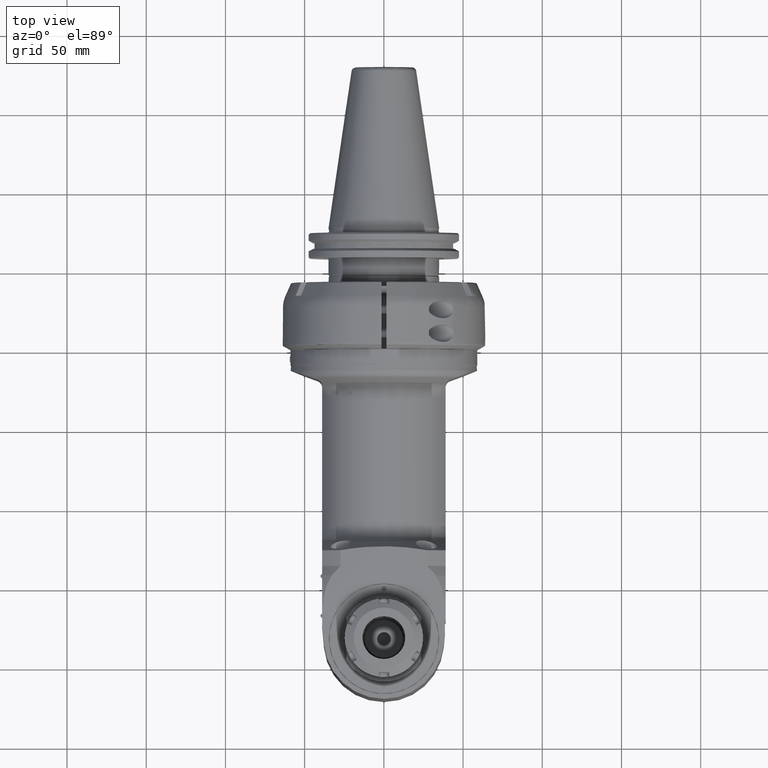
[diagram: clean part render]
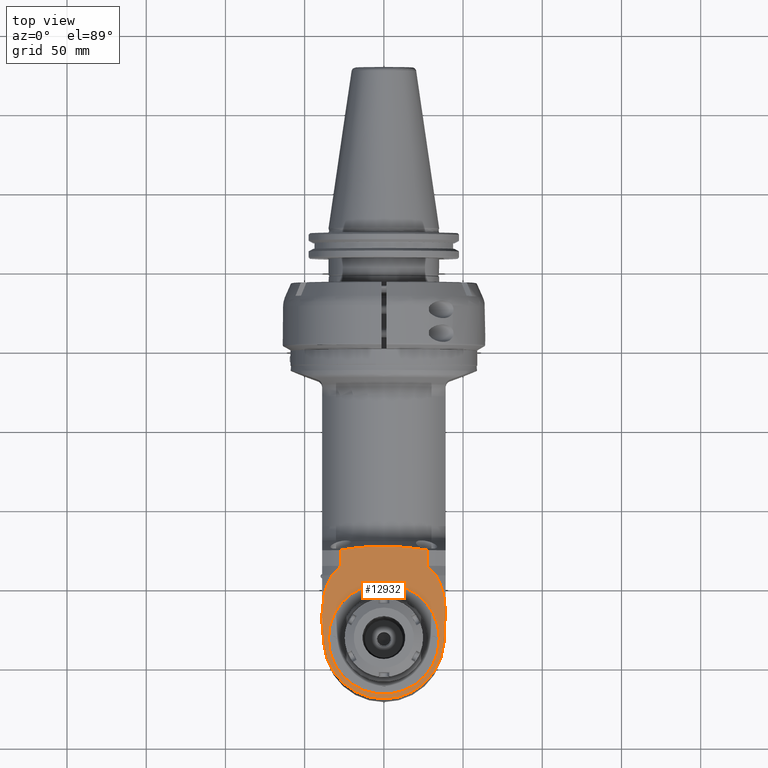
[diagram: same view with one face highlighted and labeled with its STEP entity id]
A machine part, top view. The second image highlights one B-rep face of the part: STEP entity #12932.
In plain terms, the highlighted planar face has unit normal (-0, 0, -1).
Its self-contained STEP definition (entity closure, byte-faithful):
#726=FACE_BOUND('',#2405,.T.);
#1112=CIRCLE('',#14128,38.);
#1113=CIRCLE('',#14129,35.);
#1676=FACE_OUTER_BOUND('',#2404,.T.);
#2404=EDGE_LOOP('',(#10221,#10222,#10223,#10224,#10225,#10226,#10227,#10228,
#10229,#10230,#10231,#10232,#10233,#10234,#10235,#10236,#10237,#10238));
#2405=EDGE_LOOP('',(#10239));
#2847=(
BOUNDED_CURVE()
B_SPLINE_CURVE(2,(#35173,#35174,#35175),.UNSPECIFIED.,.F.,.F.)
B_SPLINE_CURVE_WITH_KNOTS((3,3),(3.46574667649423,4.69997156363712),
 .UNSPECIFIED.)
CURVE()
GEOMETRIC_REPRESENTATION_ITEM()
RATIONAL_B_SPLINE_CURVE((1.00131005125035,1.00141766141965,1.00143577259223))
REPRESENTATION_ITEM('')
);
#2848=(
BOUNDED_CURVE()
B_SPLINE_CURVE(2,(#35177,#35178,#35179),.UNSPECIFIED.,.F.,.F.)
B_SPLINE_CURVE_WITH_KNOTS((3,3),(-4.14584983345942,-3.45064970794969),
 .UNSPECIFIED.)
CURVE()
GEOMETRIC_REPRESENTATION_ITEM()
RATIONAL_B_SPLINE_CURVE((1.00981817843623,1.0095526696491,1.0091001322618))
REPRESENTATION_ITEM('')
);
#2849=(
BOUNDED_CURVE()
B_SPLINE_CURVE(2,(#35181,#35182,#35183),.UNSPECIFIED.,.F.,.F.)
B_SPLINE_CURVE_WITH_KNOTS((3,3),(-4.06473212786279,-3.26635224676758),
 .UNSPECIFIED.)
CURVE()
GEOMETRIC_REPRESENTATION_ITEM()
RATIONAL_B_SPLINE_CURVE((1.02083211429876,1.02002626044997,1.01873328218455))
REPRESENTATION_ITEM('')
);
#2850=(
BOUNDED_CURVE()
B_SPLINE_CURVE(2,(#35185,#35186,#35187),.UNSPECIFIED.,.F.,.F.)
B_SPLINE_CURVE_WITH_KNOTS((3,3),(-5.08883926254432,-4.03890607668467),
 .UNSPECIFIED.)
CURVE()
GEOMETRIC_REPRESENTATION_ITEM()
RATIONAL_B_SPLINE_CURVE((1.06243232138824,1.06042572721876,1.05658950207019))
REPRESENTATION_ITEM('')
);
#2851=(
BOUNDED_CURVE()
B_SPLINE_CURVE(2,(#35191,#35192,#35193),.UNSPECIFIED.,.F.,.F.)
B_SPLINE_CURVE_WITH_KNOTS((3,3),(-39.2901274757521,-22.6576735332739),
 .UNSPECIFIED.)
CURVE()
GEOMETRIC_REPRESENTATION_ITEM()
RATIONAL_B_SPLINE_CURVE((2.89442768351033,3.18877626149355,2.89442768350985))
REPRESENTATION_ITEM('')
);
#2852=(
BOUNDED_CURVE()
B_SPLINE_CURVE(2,(#35197,#35198,#35199),.UNSPECIFIED.,.F.,.F.)
B_SPLINE_CURVE_WITH_KNOTS((3,3),(7.39180618123146,8.44173936707015),
 .UNSPECIFIED.)
CURVE()
GEOMETRIC_REPRESENTATION_ITEM()
RATIONAL_B_SPLINE_CURVE((1.06243232138811,1.06042572721862,1.05658950207011))
REPRESENTATION_ITEM('')
);
#2853=(
BOUNDED_CURVE()
B_SPLINE_CURVE(2,(#35201,#35202,#35203),.UNSPECIFIED.,.F.,.F.)
B_SPLINE_CURVE_WITH_KNOTS((3,3),(6.70626472364303,7.50464455392589),
 .UNSPECIFIED.)
CURVE()
GEOMETRIC_REPRESENTATION_ITEM()
RATIONAL_B_SPLINE_CURVE((1.02083211419612,1.0200262603676,1.01873328218445))
REPRESENTATION_ITEM('')
);
#2854=(
BOUNDED_CURVE()
B_SPLINE_CURVE(2,(#35205,#35206,#35207),.UNSPECIFIED.,.F.,.F.)
B_SPLINE_CURVE_WITH_KNOTS((3,3),(6.11968423305367,6.81488440493575),
 .UNSPECIFIED.)
CURVE()
GEOMETRIC_REPRESENTATION_ITEM()
RATIONAL_B_SPLINE_CURVE((1.00981817843447,1.00955266962901,1.00910013219843))
REPRESENTATION_ITEM('')
);
#2855=(
BOUNDED_CURVE()
B_SPLINE_CURVE(2,(#35209,#35210,#35211),.UNSPECIFIED.,.F.,.F.)
B_SPLINE_CURVE_WITH_KNOTS((3,3),(5.19949135147145,6.43371624076894),
 .UNSPECIFIED.)
CURVE()
GEOMETRIC_REPRESENTATION_ITEM()
RATIONAL_B_SPLINE_CURVE((1.00143577259223,1.00141766141962,1.00131005124997))
REPRESENTATION_ITEM('')
);
#3552=LINE('',#35145,#4499);
#3556=LINE('',#35159,#4503);
#3559=LINE('',#35166,#4506);
#3560=LINE('',#35170,#4507);
#3561=LINE('',#35171,#4508);
#3562=LINE('',#35189,#4509);
#3563=LINE('',#35195,#4510);
#3564=LINE('',#35212,#4511);
#4499=VECTOR('',#16662,10.);
#4503=VECTOR('',#16674,10.);
#4506=VECTOR('',#16679,13.1328290761894);
#4507=VECTOR('',#16682,7.39597245335467);
#4508=VECTOR('',#16683,6.954089679144);
#4509=VECTOR('',#16684,9.909409918381);
#4510=VECTOR('',#16685,9.909409918361);
#4511=VECTOR('',#16686,6.26955266875);
#5647=VERTEX_POINT('',#35024);
#5667=VERTEX_POINT('',#35141);
#5673=VERTEX_POINT('',#35158);
#5675=VERTEX_POINT('',#35164);
#5676=VERTEX_POINT('',#35165);
#5677=VERTEX_POINT('',#35167);
#5678=VERTEX_POINT('',#35169);
#5679=VERTEX_POINT('',#35172);
#5680=VERTEX_POINT('',#35176);
#5681=VERTEX_POINT('',#35180);
#5682=VERTEX_POINT('',#35184);
#5683=VERTEX_POINT('',#35188);
#5684=VERTEX_POINT('',#35190);
#5685=VERTEX_POINT('',#35194);
#5686=VERTEX_POINT('',#35196);
#5687=VERTEX_POINT('',#35200);
#5688=VERTEX_POINT('',#35204);
#5689=VERTEX_POINT('',#35208);
#5690=VERTEX_POINT('',#35213);
#7335=EDGE_CURVE('',#5647,#5667,#3552,.T.);
#7342=EDGE_CURVE('',#5673,#5647,#3556,.T.);
#7345=EDGE_CURVE('',#5675,#5676,#3559,.T.);
#7346=EDGE_CURVE('',#5676,#5677,#1112,.T.);
#7347=EDGE_CURVE('',#5677,#5678,#3560,.T.);
#7348=EDGE_CURVE('',#5673,#5678,#3561,.T.);
#7349=EDGE_CURVE('',#5679,#5667,#2847,.T.);
#7350=EDGE_CURVE('',#5679,#5680,#2848,.T.);
#7351=EDGE_CURVE('',#5680,#5681,#2849,.T.);
#7352=EDGE_CURVE('',#5681,#5682,#2850,.T.);
#7353=EDGE_CURVE('',#5683,#5682,#3562,.T.);
#7354=EDGE_CURVE('',#5684,#5683,#2851,.F.);
#7355=EDGE_CURVE('',#5685,#5684,#3563,.T.);
#7356=EDGE_CURVE('',#5686,#5685,#2852,.T.);
#7357=EDGE_CURVE('',#5687,#5686,#2853,.T.);
#7358=EDGE_CURVE('',#5688,#5687,#2854,.T.);
#7359=EDGE_CURVE('',#5689,#5688,#2855,.T.);
#7360=EDGE_CURVE('',#5675,#5689,#3564,.T.);
#7361=EDGE_CURVE('',#5690,#5690,#1113,.T.);
#10221=ORIENTED_EDGE('',*,*,#7345,.T.);
#10222=ORIENTED_EDGE('',*,*,#7346,.T.);
#10223=ORIENTED_EDGE('',*,*,#7347,.T.);
#10224=ORIENTED_EDGE('',*,*,#7348,.F.);
#10225=ORIENTED_EDGE('',*,*,#7342,.T.);
#10226=ORIENTED_EDGE('',*,*,#7335,.T.);
#10227=ORIENTED_EDGE('',*,*,#7349,.F.);
#10228=ORIENTED_EDGE('',*,*,#7350,.T.);
#10229=ORIENTED_EDGE('',*,*,#7351,.T.);
#10230=ORIENTED_EDGE('',*,*,#7352,.T.);
#10231=ORIENTED_EDGE('',*,*,#7353,.F.);
#10232=ORIENTED_EDGE('',*,*,#7354,.F.);
#10233=ORIENTED_EDGE('',*,*,#7355,.F.);
#10234=ORIENTED_EDGE('',*,*,#7356,.F.);
#10235=ORIENTED_EDGE('',*,*,#7357,.F.);
#10236=ORIENTED_EDGE('',*,*,#7358,.F.);
#10237=ORIENTED_EDGE('',*,*,#7359,.F.);
#10238=ORIENTED_EDGE('',*,*,#7360,.F.);
#10239=ORIENTED_EDGE('',*,*,#7361,.T.);
#12070=PLANE('',#14127);
#12932=ADVANCED_FACE('',(#1676,#726),#12070,.F.);
#14127=AXIS2_PLACEMENT_3D('',#35163,#16677,#16678);
#14128=AXIS2_PLACEMENT_3D('',#35168,#16680,#16681);
#14129=AXIS2_PLACEMENT_3D('',#35214,#16687,#16688);
#16662=DIRECTION('',(-1.,0.,0.));
#16674=DIRECTION('',(-0.707106781186498,0.,0.707106781186597));
#16677=DIRECTION('center_axis',(0.,1.,0.));
#16678=DIRECTION('ref_axis',(0.,0.,-1.));
#16679=DIRECTION('',(0.996194698091745,0.,0.0871557427476639));
#16680=DIRECTION('center_axis',(0.,-1.,0.));
#16681=DIRECTION('ref_axis',(0.0871557427475263,0.,-0.996194698091757));
#16682=DIRECTION('',(-0.996194698091745,0.,0.0871557427476639));
#16683=DIRECTION('',(1.,0.,0.));
#16684=DIRECTION('',(1.,2.588508596598E-12,3.619645656802E-11));
#16685=DIRECTION('',(-1.,-1.812673056014E-12,3.451786969146E-11));
#16686=DIRECTION('',(-1.,0.,0.));
#16687=DIRECTION('center_axis',(0.,1.,0.));
#16688=DIRECTION('ref_axis',(0.,0.,1.));
#35024=CARTESIAN_POINT('',(161.490000011152,-59.,38.9999999953807));
#35141=CARTESIAN_POINT('',(156.959510859,-59.,39.));
#35145=CARTESIAN_POINT('',(111.7846528,-59.,39.));
#35158=CARTESIAN_POINT('',(161.99,-59.,38.5));
#35159=CARTESIAN_POINT('',(138.286686400002,-59.,62.2033136000018));
#35163=CARTESIAN_POINT('Origin',(118.4999976,-59.,89.333252));
#35164=CARTESIAN_POINT('',(163.2290635278,-59.,-39.));
#35165=CARTESIAN_POINT('',(176.3119182244,-59.,-37.85539852749));
#35166=CARTESIAN_POINT('',(163.2290635278,-59.,-39.));
#35167=CARTESIAN_POINT('',(176.3119182244,-59.,37.85539852749));
#35168=CARTESIAN_POINT('Origin',(173.,-59.,0.));
#35169=CARTESIAN_POINT('',(168.9440896791,-59.,38.5));
#35170=CARTESIAN_POINT('',(176.3119182244,-59.,37.85539852749));
#35171=CARTESIAN_POINT('',(161.99,-59.,38.5));
#35172=CARTESIAN_POINT('',(145.000000019995,-58.9999999981641,37.6696164115023));
#35173=CARTESIAN_POINT('Ctrl Pts',(145.000000020536,-59.,37.669616406725));
#35174=CARTESIAN_POINT('Ctrl Pts',(150.875993755911,-59.,38.3313820589938));
#35175=CARTESIAN_POINT('Ctrl Pts',(156.959510859067,-59.,38.9999999999991));
#35176=CARTESIAN_POINT('',(139.000000384506,-58.9999999413347,35.7770878915691));
#35177=CARTESIAN_POINT('Ctrl Pts',(145.000000020253,-59.,37.6696164106973));
#35178=CARTESIAN_POINT('Ctrl Pts',(141.922698106803,-59.,36.7165444370491));
#35179=CARTESIAN_POINT('Ctrl Pts',(139.000000421973,-59.,35.7770877763979));
#35180=CARTESIAN_POINT('',(133.000000732202,-58.9999998414815,32.7910056460189));
#35181=CARTESIAN_POINT('Ctrl Pts',(139.000000410599,-59.,35.7770878387269));
#35182=CARTESIAN_POINT('Ctrl Pts',(135.869353199527,-59.,34.2676395371956));
#35183=CARTESIAN_POINT('Ctrl Pts',(133.000000896837,-59.,32.7910053264677));
#35184=CARTESIAN_POINT('',(127.,-59.00000000035,27.27636339413));
#35185=CARTESIAN_POINT('Ctrl Pts',(133.000000807997,-59.,32.7910055579529));
#35186=CARTESIAN_POINT('Ctrl Pts',(129.724577507709,-59.,29.9816595432938));
#35187=CARTESIAN_POINT('Ctrl Pts',(126.999999999659,-59.,27.2763633945283));
#35188=CARTESIAN_POINT('',(117.0905900813,-59.00000000003,27.27636339392));
#35189=CARTESIAN_POINT('',(117.0905900813,-59.00000000003,27.27636339392));
#35190=CARTESIAN_POINT('',(117.0905900813,-59.,-27.27636339397));
#35191=CARTESIAN_POINT('Ctrl Pts',(117.090590081315,-59.,27.2763633939173));
#35192=CARTESIAN_POINT('Ctrl Pts',(112.466043742538,-59.,-2.00568450736682E-11));
#35193=CARTESIAN_POINT('Ctrl Pts',(117.090590081323,-59.,-27.276363393966));
#35194=CARTESIAN_POINT('',(126.9999999997,-58.99999999998,-27.27636339431));
#35195=CARTESIAN_POINT('',(126.9999999997,-58.99999999998,-27.27636339431));
#35196=CARTESIAN_POINT('',(133.000000732018,-58.9999998415215,-32.7910056458222));
#35197=CARTESIAN_POINT('Ctrl Pts',(133.000000807793,-59.,-32.7910055577782));
#35198=CARTESIAN_POINT('Ctrl Pts',(129.724577507588,-59.,-29.9816595431785));
#35199=CARTESIAN_POINT('Ctrl Pts',(126.999999999598,-59.,-27.2763633944676));
#35200=CARTESIAN_POINT('',(139.00000001141,-58.9999999982559,-35.7770876482033));
#35201=CARTESIAN_POINT('Ctrl Pts',(139.000000012172,-59.,-35.7770876466243));
#35202=CARTESIAN_POINT('Ctrl Pts',(135.869353016904,-59.,-34.2676394432179));
#35203=CARTESIAN_POINT('Ctrl Pts',(133.000000896611,-59.,-32.7910053263514));
#35204=CARTESIAN_POINT('',(145.,-59.,-37.66961640442));
#35205=CARTESIAN_POINT('Ctrl Pts',(144.999999999863,-59.,-37.6696164043822));
#35206=CARTESIAN_POINT('Ctrl Pts',(141.922697881601,-59.,-36.716544367188));
#35207=CARTESIAN_POINT('Ctrl Pts',(139.00000001251,-59.,-35.7770876447822));
#35208=CARTESIAN_POINT('',(156.959510859,-59.,-39.));
#35209=CARTESIAN_POINT('Ctrl Pts',(156.959510859067,-59.,-38.9999999999991));
#35210=CARTESIAN_POINT('Ctrl Pts',(150.875993745291,-59.,-38.3313820578265));
#35211=CARTESIAN_POINT('Ctrl Pts',(145.000000000018,-59.,-37.6696164044142));
#35212=CARTESIAN_POINT('',(163.2290635278,-59.,-39.));
#35213=CARTESIAN_POINT('',(173.,-59.,-35.));
#35214=CARTESIAN_POINT('Origin',(173.,-59.,0.));